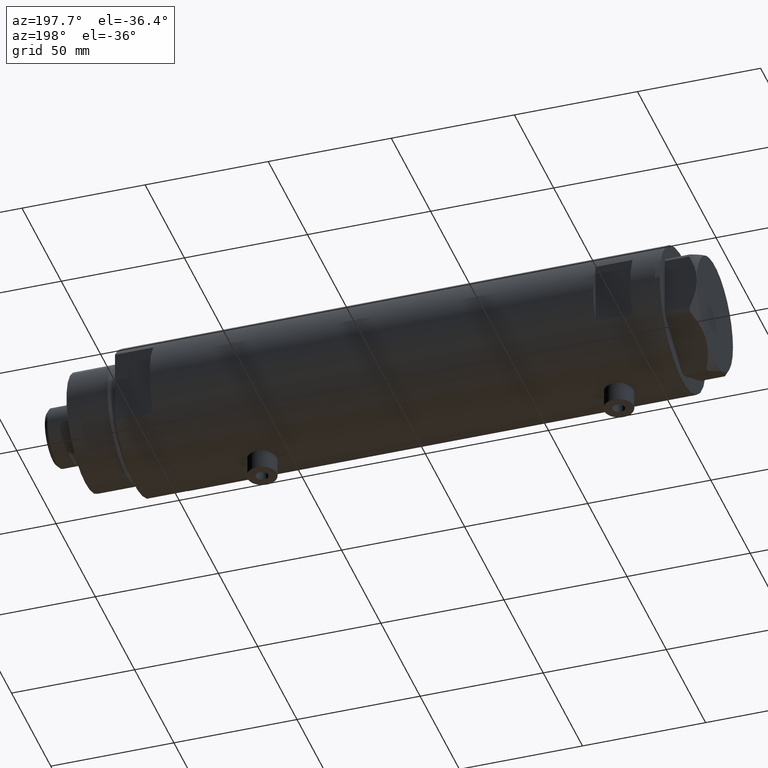
[diagram: clean part render]
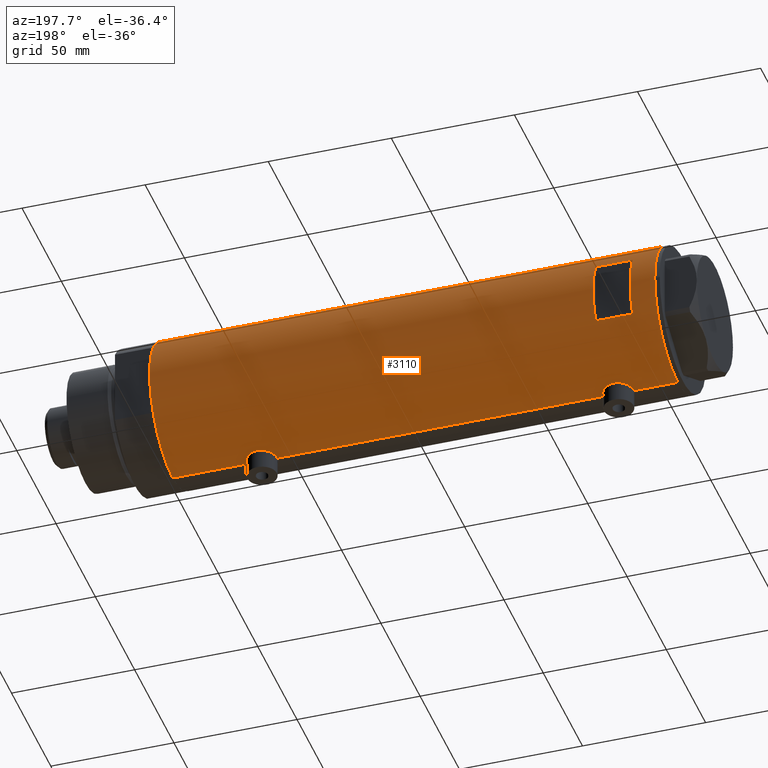
[diagram: same view with one face highlighted and labeled with its STEP entity id]
A machine part, auxiliary view. The second image highlights one B-rep face of the part: STEP entity #3110.
In plain terms, the highlighted cylindrical surface (partial cylindrical patch) has radius 29.5 mm, axis along (-1, -0, 0).
Its self-contained STEP definition (entity closure, byte-faithful):
#11 = CARTESIAN_POINT ( 'NONE',  ( 29.31463363472446204, 3.333180401682688920, -70.13656844683045222 ) ) ;
#32 = CARTESIAN_POINT ( 'NONE',  ( 28.63233008736633778, 7.102474189478622968, 79.67814868761111313 ) ) ;
#54 = CARTESIAN_POINT ( 'NONE',  ( 29.50000000000000355, 0.000000000000000000, 102.5999999999999943 ) ) ;
#61 = VECTOR ( 'NONE', #4126, 1000.000000000000000 ) ;
#69 = VECTOR ( 'NONE', #3626, 1000.000000000000000 ) ;
#97 = CARTESIAN_POINT ( 'NONE',  ( 29.50000000000000355, 0.2453482418156857914, 89.59999999999998010 ) ) ;
#103 = CARTESIAN_POINT ( 'NONE',  ( 29.08308069045667565, 4.954707331652133284, 87.75173628376772683 ) ) ;
#111 = CARTESIAN_POINT ( 'NONE',  ( -29.33379699751450431, 3.132328395749497396, -71.71232164486114868 ) ) ;
#166 = EDGE_CURVE ( 'NONE', #1174, #3950, #3920, .T. ) ;
#197 = CARTESIAN_POINT ( 'NONE',  ( -28.89816269917384872, 5.930588606439751054, 76.58529684457830911 ) ) ;
#228 = EDGE_CURVE ( 'NONE', #3821, #3749, #308, .T. ) ;
#233 = ORIENTED_EDGE ( 'NONE', *, *, #166, .T. ) ;
#279 = CARTESIAN_POINT ( 'NONE',  ( 28.59637095282949559, 7.245897747848937698, -65.35127374277608681 ) ) ;
#287 = CARTESIAN_POINT ( 'NONE',  ( -28.87327190949137545, 6.049038945481239438, -67.92451728205175243 ) ) ;
#296 = CARTESIAN_POINT ( 'NONE',  ( -29.12318177724206691, 4.709191267490246524, 74.47028949758346528 ) ) ;
#303 = CARTESIAN_POINT ( 'NONE',  ( 28.95590528945748687, 5.641861744747099117, -58.45235088071115115 ) ) ;
#308 = LINE ( 'NONE', #734, #4004 ) ;
#309 = ORIENTED_EDGE ( 'NONE', *, *, #1296, .T. ) ;
#333 = CARTESIAN_POINT ( 'NONE',  ( 28.77649569280672992, 6.494415104660921756, -59.64065011183374310 ) ) ;
#354 = CARTESIAN_POINT ( 'NONE',  ( 28.54350045195477037, 7.451747857568912892, -64.38266002875499794 ) ) ;
#360 = CARTESIAN_POINT ( 'NONE',  ( -29.12335997091253503, 4.707903814166473744, -62.16921992621198712 ) ) ;
#378 = CARTESIAN_POINT ( 'NONE',  ( 29.08204711695421807, 4.951923910293536402, -69.03816021594296615 ) ) ;
#396 = CARTESIAN_POINT ( 'NONE',  ( -29.43341305963176069, 2.016871341298213771, 72.67025331001197230 ) ) ;
#399 = CARTESIAN_POINT ( 'NONE',  ( 29.50000000000000355, -1.919926123348039602E-15, -70.89999999999999147 ) ) ;
#400 = CARTESIAN_POINT ( 'NONE',  ( 28.54350045195476326, 7.451747857568912004, 81.11733997124495943 ) ) ;
#409 = EDGE_CURVE ( 'NONE', #1310, #2507, #2648, .T. ) ;
#410 = CARTESIAN_POINT ( 'NONE',  ( -29.50000000000000711, 0.2042768310961464717, -72.55000000000001137 ) ) ;
#439 = DIRECTION ( 'NONE',  ( 1.000000000000000000, 0.000000000000000000, 0.000000000000000000 ) ) ;
#442 = CARTESIAN_POINT ( 'NONE',  ( 28.95615051861771860, 5.649234316505064690, 77.14284581253269835 ) ) ;
#449 = CARTESIAN_POINT ( 'NONE',  ( -28.94521404191311476, 5.694822755760267086, -68.88333046401342585 ) ) ;
#464 = DIRECTION ( 'NONE',  ( 0.000000000000000000, 0.000000000000000000, 1.000000000000000000 ) ) ;
#468 = CARTESIAN_POINT ( 'NONE',  ( 28.86328010881651807, 6.097564286278117862, 86.47368290922693745 ) ) ;
#477 = CARTESIAN_POINT ( 'NONE',  ( -29.43341305963176424, 2.016871341298205778, -72.22974668998810444 ) ) ;
#497 = CARTESIAN_POINT ( 'NONE',  ( -12.96148139681573319, 26.49999999999999645, -102.5999999999999943 ) ) ;
#498 = CARTESIAN_POINT ( 'NONE',  ( -28.99931529802530505, 5.412890550536864964, -69.43129199055215395 ) ) ;
#500 = CIRCLE ( 'NONE', #724, 29.50000000000000355 ) ;
#547 = VERTEX_POINT ( 'NONE', #2519 ) ;
#561 = CARTESIAN_POINT ( 'NONE',  ( -29.37156641804199353, 2.775801885207114239, 84.21472569706635625 ) ) ;
#583 = CARTESIAN_POINT ( 'NONE',  ( -29.50000000000000355, -5.649958391113855330E-16, 84.85000000000000853 ) ) ;
#586 = DIRECTION ( 'NONE',  ( 0.000000000000000000, 0.000000000000000000, 1.000000000000000000 ) ) ;
#608 = CARTESIAN_POINT ( 'NONE',  ( -29.46640581083894261, 1.421634556901802293, 84.68958891089420149 ) ) ;
#640 = CARTESIAN_POINT ( 'NONE',  ( 28.53073993742369652, 7.499791908386163719, -63.89461948433038430 ) ) ;
#660 = CARTESIAN_POINT ( 'NONE',  ( 28.58083212642745252, 7.306745240314161727, -65.10953669436206326 ) ) ;
#662 = VERTEX_POINT ( 'NONE', #679 ) ;
#663 = DIRECTION ( 'NONE',  ( -0.000000000000000000, -0.000000000000000000, -1.000000000000000000 ) ) ;
#675 = ORIENTED_EDGE ( 'NONE', *, *, #3569, .F. ) ;
#677 = LINE ( 'NONE', #1399, #1564 ) ;
#679 = CARTESIAN_POINT ( 'NONE',  ( -12.96148139681574030, 26.50000000000000355, 77.59999999999999432 ) ) ;
#684 = CARTESIAN_POINT ( 'NONE',  ( 29.17471722935868428, 4.373569479501284718, -69.49768842409017111 ) ) ;
#691 = CIRCLE ( 'NONE', #1071, 29.50000000000000355 ) ;
#694 = CARTESIAN_POINT ( 'NONE',  ( 0.000000000000000000, 0.000000000000000000, 92.59999999999999432 ) ) ;
#704 = CARTESIAN_POINT ( 'NONE',  ( -28.99931529802531571, 5.412890550536858747, 75.46870800944782331 ) ) ;
#716 = CARTESIAN_POINT ( 'NONE',  ( -29.45614208737133666, 1.620034288692377089, -60.26011356088387316 ) ) ;
#724 = AXIS2_PLACEMENT_3D ( 'NONE', #1752, #2124, #3604 ) ;
#728 = CARTESIAN_POINT ( 'NONE',  ( 28.69800960089390074, 6.832546664705498429, 85.20275030291305995 ) ) ;
#734 = CARTESIAN_POINT ( 'NONE',  ( 12.96148139681573319, 26.49999999999999645, -102.5999999999999943 ) ) ;
#736 = CARTESIAN_POINT ( 'NONE',  ( -28.99817753551064925, 5.423057650933444940, -63.16603848537408084 ) ) ;
#749 = CARTESIAN_POINT ( 'NONE',  ( 28.59637095282950980, 7.245897747848937698, 80.14872625722385635 ) ) ;
#752 = CARTESIAN_POINT ( 'NONE',  ( 29.48463566286631021, 0.9832945201638386701, -55.96062548237702572 ) ) ;
#760 = VERTEX_POINT ( 'NONE', #399 ) ;
#805 = CARTESIAN_POINT ( 'NONE',  ( -28.96258065965880135, 5.606121065329693565, -69.07051985068761724 ) ) ;
#814 = CARTESIAN_POINT ( 'NONE',  ( 29.26131531204080360, 3.767377415172557864, 88.60345302571127490 ) ) ;
#819 = CARTESIAN_POINT ( 'NONE',  ( 28.77473834757382321, 6.507156404236272174, 78.33837315939700829 ) ) ;
#885 = ORIENTED_EDGE ( 'NONE', *, *, #1954, .F. ) ;
#896 = ORIENTED_EDGE ( 'NONE', *, *, #1273, .F. ) ;
#940 = CARTESIAN_POINT ( 'NONE',  ( -29.49128627113591250, 0.8212788586050364659, 84.80923124908873945 ) ) ;
#963 = CARTESIAN_POINT ( 'NONE',  ( -29.45614208737133310, 1.620034288692375535, 84.63988643911609699 ) ) ;
#981 = DIRECTION ( 'NONE',  ( 0.000000000000000000, 0.000000000000000000, 1.000000000000000000 ) ) ;
#992 = AXIS2_PLACEMENT_3D ( 'NONE', #2822, #981, #1670 ) ;
#1015 = VERTEX_POINT ( 'NONE', #3593 ) ;
#1028 = CARTESIAN_POINT ( 'NONE',  ( -29.41782704931130965, 2.208494778271269166, -60.44961702072825460 ) ) ;
#1049 = CARTESIAN_POINT ( 'NONE',  ( -29.50000000000001066, 0.4142160563134688056, -60.05000000000000426 ) ) ;
#1058 = CARTESIAN_POINT ( 'NONE',  ( -28.96258065965880846, 5.606121065329690012, 75.82948014931236003 ) ) ;
#1063 = VECTOR ( 'NONE', #586, 1000.000000000000000 ) ;
#1064 = CARTESIAN_POINT ( 'NONE',  ( 29.31521205951408504, 3.327945423969218108, 88.83906509227087156 ) ) ;
#1065 = CARTESIAN_POINT ( 'NONE',  ( 29.43668864566816623, 1.946133027943910854, -70.64730912701001841 ) ) ;
#1071 = AXIS2_PLACEMENT_3D ( 'NONE', #694, #3302, #1096 ) ;
#1073 = CARTESIAN_POINT ( 'NONE',  ( -29.49128627113591250, 0.8212788586050389084, -60.09076875091125913 ) ) ;
#1096 = DIRECTION ( 'NONE',  ( 1.000000000000000000, -1.776356839400250267E-15, 0.000000000000000000 ) ) ;
#1104 = B_SPLINE_CURVE_WITH_KNOTS ( 'NONE', 3,
 ( #4460, #3344, #2591, #3023, #4774, #1133, #3387, #1493, #1159, #1111, #3754, #2643, #4143, #442, #1907, #819, #2298, #3780, #32, #749, #3707, #400, #1863, #1442, #2926, #4415, #4051, #728, #3682, #1833, #3317, #468, #1562, #1938, #3416, #103, #3045, #814, #1064, #2905, #4189, #4755, #2345, #3772, #97, #3802 ),
 .UNSPECIFIED., .F., .F.,
 ( 4, 2, 2, 2, 2, 2, 2, 2, 2, 2, 2, 2, 2, 2, 2, 2, 2, 2, 2, 2, 2, 2, 4 ),
 ( 2.180446897674398484E-18, 0.001471587963626214742, 0.002207381945439317126, 0.002943175927252419943, 0.004414763890878623843, 0.005150557872691738370, 0.005886351854504852897, 0.007357939818131048991, 0.008829527781757242483, 0.009565321763570359612, 0.01030111574538347674, 0.01177270370900966763, 0.01324429167263586199, 0.01471587963626205808, 0.01545167361807515093, 0.01618746759988825071, 0.01692326158170134529, 0.01765905556351443986, 0.01913064352714060473, 0.02060223149076676613, 0.02207381945439293100, 0.02280961343620601170, 0.02354540741801909587 ),
 .UNSPECIFIED. ) ;
#1111 = CARTESIAN_POINT ( 'NONE',  ( 29.17471722935868783, 4.373569479501283830, 76.00231157590984310 ) ) ;
#1118 = CARTESIAN_POINT ( 'NONE',  ( -29.50000000000000355, -1.590035304987910071E-15, -60.04999999999999005 ) ) ;
#1133 = CARTESIAN_POINT ( 'NONE',  ( 29.40165444879503909, 2.418426732012825653, 74.99632943565211463 ) ) ;
#1159 = CARTESIAN_POINT ( 'NONE',  ( 29.26187100173484623, 3.763222966830672256, 75.59401741939376507 ) ) ;
#1174 = VERTEX_POINT ( 'NONE', #3437 ) ;
#1190 = CARTESIAN_POINT ( 'NONE',  ( -29.21113960567727830, 4.128622307952528381, -71.01014533383553839 ) ) ;
#1273 = EDGE_CURVE ( 'NONE', #1310, #3284, #4167, .T. ) ;
#1281 = ORIENTED_EDGE ( 'NONE', *, *, #4161, .F. ) ;
#1289 = FACE_BOUND ( 'NONE', #2358, .T. ) ;
#1296 = EDGE_CURVE ( 'NONE', #3950, #547, #677, .T. ) ;
#1310 = VERTEX_POINT ( 'NONE', #3266 ) ;
#1320 = CARTESIAN_POINT ( 'NONE',  ( -12.96148139681573319, 26.49999999999998934, 92.59999999999999432 ) ) ;
#1325 = CARTESIAN_POINT ( 'NONE',  ( -29.12335997091253148, 4.707903814166463086, 82.73078007378803989 ) ) ;
#1372 = CARTESIAN_POINT ( 'NONE',  ( -28.91416466586725065, 5.850419487802252405, 80.80827647633628885 ) ) ;
#1399 = CARTESIAN_POINT ( 'NONE',  ( -29.50000000000000355, 3.612708057484692393E-15, -102.5999999999999943 ) ) ;
#1405 = CARTESIAN_POINT ( 'NONE',  ( 28.65280969280605206, 7.019670864411699185, -66.05213168683107483 ) ) ;
#1419 = DIRECTION ( 'NONE',  ( 0.000000000000000000, 0.000000000000000000, 1.000000000000000000 ) ) ;
#1426 = CARTESIAN_POINT ( 'NONE',  ( 29.38138226830142941, 2.652609128011945039, -70.41954601959669446 ) ) ;
#1442 = CARTESIAN_POINT ( 'NONE',  ( 28.53063088452981688, 7.500206755597528030, 82.58828856904804638 ) ) ;
#1445 = CARTESIAN_POINT ( 'NONE',  ( 29.50000000000000355, -1.919926123348039602E-15, -70.89999999999999147 ) ) ;
#1460 = EDGE_CURVE ( 'NONE', #1015, #3284, #4550, .T. ) ;
#1479 = CARTESIAN_POINT ( 'NONE',  ( -29.33500454540941149, 3.134363790739244759, -60.87737865536320214 ) ) ;
#1489 = CARTESIAN_POINT ( 'NONE',  ( -29.50000000000000355, 3.612706708236066082E-15, 72.34999999999999432 ) ) ;
#1493 = CARTESIAN_POINT ( 'NONE',  ( 29.31463363472445849, 3.333180401682688476, 75.36343155316953357 ) ) ;
#1494 = CARTESIAN_POINT ( 'NONE',  ( 29.47533087885489067, 1.230190383163956458, -55.99747868232939396 ) ) ;
#1499 = DIRECTION ( 'NONE',  ( 0.000000000000000000, 4.625929269271487689E-15, 1.000000000000000000 ) ) ;
#1502 = DIRECTION ( 'NONE',  ( 0.000000000000000000, 0.000000000000000000, 1.000000000000000000 ) ) ;
#1516 = CARTESIAN_POINT ( 'NONE',  ( 29.43913092143245791, 1.954882548385554752, -56.14250765266647392 ) ) ;
#1562 = CARTESIAN_POINT ( 'NONE',  ( 28.89369475765812112, 5.952264974793434860, 86.66950516186247455 ) ) ;
#1564 = VECTOR ( 'NONE', #1419, 1000.000000000000000 ) ;
#1591 = CARTESIAN_POINT ( 'NONE',  ( 0.000000000000000000, 0.000000000000000000, 77.60000000000007958 ) ) ;
#1603 = VECTOR ( 'NONE', #4641, 1000.000000000000000 ) ;
#1633 = CARTESIAN_POINT ( 'NONE',  ( -29.50000000000000711, 0.4142160563134686946, 84.85000000000002274 ) ) ;
#1654 = CARTESIAN_POINT ( 'NONE',  ( -28.94521404191312541, 5.694822755760260868, 76.01666953598657983 ) ) ;
#1670 = DIRECTION ( 'NONE',  ( 1.000000000000000000, 0.000000000000000000, 0.000000000000000000 ) ) ;
#1701 = FACE_OUTER_BOUND ( 'NONE', #4289, .T. ) ;
#1712 = EDGE_CURVE ( 'NONE', #2837, #2507, #500, .T. ) ;
#1730 = CARTESIAN_POINT ( 'NONE',  ( -29.07990598238133018, 4.966177878631055975, 82.41685031646510140 ) ) ;
#1735 = CARTESIAN_POINT ( 'NONE',  ( 12.96148139681573319, 26.49999999999998934, 92.59999999999999432 ) ) ;
#1737 = CARTESIAN_POINT ( 'NONE',  ( 29.50000000000000711, 0.4977435627019816122, -70.90000000000000568 ) ) ;
#1752 = CARTESIAN_POINT ( 'NONE',  ( 0.000000000000000000, 0.000000000000000000, 102.5999999999999943 ) ) ;
#1755 = CARTESIAN_POINT ( 'NONE',  ( -29.38727827406289705, 2.583363936682820494, 72.90521973871332762 ) ) ;
#1764 = CARTESIAN_POINT ( 'NONE',  ( 28.98787507734747848, 5.475789924529805397, -58.26910956623372329 ) ) ;
#1784 = CARTESIAN_POINT ( 'NONE',  ( -29.31451746246149170, 3.307268797680003036, 73.29285158014995716 ) ) ;
#1814 = CARTESIAN_POINT ( 'NONE',  ( 28.62953349941190950, 7.116010646391500494, -60.98020539076896540 ) ) ;
#1820 = CARTESIAN_POINT ( 'NONE',  ( 29.50000000000000355, -8.867907290838723877E-21, 89.59999999999998010 ) ) ;
#1821 = ORIENTED_EDGE ( 'NONE', *, *, #409, .T. ) ;
#1829 = CARTESIAN_POINT ( 'NONE',  ( -29.37021410611213668, 2.770135525807589261, 72.99365930977171502 ) ) ;
#1833 = CARTESIAN_POINT ( 'NONE',  ( 28.77649569280672992, 6.494415104660927973, 85.85934988816620717 ) ) ;
#1863 = CARTESIAN_POINT ( 'NONE',  ( 28.53073993742370362, 7.499791908386164607, 81.60538051566962281 ) ) ;
#1881 = VECTOR ( 'NONE', #2612, 1000.000000000000000 ) ;
#1890 = VERTEX_POINT ( 'NONE', #4054 ) ;
#1894 = CARTESIAN_POINT ( 'NONE',  ( -29.45783481716065566, 1.627188261681552728, -72.34836410908947357 ) ) ;
#1907 = CARTESIAN_POINT ( 'NONE',  ( 28.89325003604223951, 5.958922200807248437, 77.51915213504481983 ) ) ;
#1918 = ORIENTED_EDGE ( 'NONE', *, *, #2581, .F. ) ;
#1938 = CARTESIAN_POINT ( 'NONE',  ( 28.95590528945748687, 5.641861744747101781, 87.04764911928883464 ) ) ;
#1946 = CARTESIAN_POINT ( 'NONE',  ( -29.12318177724206691, 4.709191267490252741, -70.42971050241654041 ) ) ;
#1950 = LINE ( 'NONE', #3355, #2157 ) ;
#1954 = EDGE_CURVE ( 'NONE', #1174, #760, #1950, .T. ) ;
#1990 = ORIENTED_EDGE ( 'NONE', *, *, #228, .F. ) ;
#2008 = CARTESIAN_POINT ( 'NONE',  ( -28.83909818927743629, 6.209925900742494065, 79.41778075451993857 ) ) ;
#2066 = CARTESIAN_POINT ( 'NONE',  ( 29.50000000000000355, -8.867907290838723877E-21, -55.89999999999997016 ) ) ;
#2080 = CARTESIAN_POINT ( 'NONE',  ( -29.41782704931129544, 2.208494778271264725, 84.45038297927173687 ) ) ;
#2120 = CARTESIAN_POINT ( 'NONE',  ( -28.83028740688047975, 6.250162243045993549, -66.70646065908374567 ) ) ;
#2124 = DIRECTION ( 'NONE',  ( 0.000000000000000000, 0.000000000000000000, 1.000000000000000000 ) ) ;
#2132 = CARTESIAN_POINT ( 'NONE',  ( 28.72322018454529413, 6.726124749058835839, -60.07293147148995871 ) ) ;
#2157 = VECTOR ( 'NONE', #1502, 1000.000000000000000 ) ;
#2158 = CARTESIAN_POINT ( 'NONE',  ( 29.40387556522357571, 2.422597899785631004, -56.28513960230166191 ) ) ;
#2167 = CARTESIAN_POINT ( 'NONE',  ( -29.25454443288368722, 3.812919888526645096, -61.33102620819089168 ) ) ;
#2184 = CARTESIAN_POINT ( 'NONE',  ( 28.77473834757381965, 6.507156404236271285, -67.16162684060294907 ) ) ;
#2205 = CARTESIAN_POINT ( 'NONE',  ( 29.05056090758568743, 5.132790299589564675, -68.87391726652082014 ) ) ;
#2211 = CARTESIAN_POINT ( 'NONE',  ( -28.83035796536222861, 6.249836767212682886, -65.88856505377277983 ) ) ;
#2230 = CARTESIAN_POINT ( 'NONE',  ( 29.50000000000000711, 0.2453482418156860689, -55.89999999999997726 ) ) ;
#2285 = CARTESIAN_POINT ( 'NONE',  ( -29.07940225710134285, 4.969011347753395924, -70.11269734470182868 ) ) ;
#2298 = CARTESIAN_POINT ( 'NONE',  ( 28.72066933684368095, 6.738715173607861431, 78.77163044046442053 ) ) ;
#2308 = CARTESIAN_POINT ( 'NONE',  ( -29.48289442777306846, 1.024392307325224349, -72.46888222528698975 ) ) ;
#2345 = CARTESIAN_POINT ( 'NONE',  ( 29.48463566286631377, 0.9832945201638373378, 89.53937451762293165 ) ) ;
#2358 = EDGE_LOOP ( 'NONE', ( #1918, #1281, #1990, #4643 ) ) ;
#2471 = CARTESIAN_POINT ( 'NONE',  ( -29.33500454540941149, 3.134363790739238542, 84.02262134463680354 ) ) ;
#2479 = CARTESIAN_POINT ( 'NONE',  ( 28.89325003604224662, 5.958922200807249325, -67.98084786495518017 ) ) ;
#2494 = CARTESIAN_POINT ( 'NONE',  ( -29.48289442777306846, 1.024392307325220797, 72.43111777471301593 ) ) ;
#2502 = CARTESIAN_POINT ( 'NONE',  ( 29.14416130131008131, 4.572185141625607407, -69.35025411765555248 ) ) ;
#2507 = VERTEX_POINT ( 'NONE', #3326 ) ;
#2511 = CARTESIAN_POINT ( 'NONE',  ( -28.89816269917384872, 5.930588606439759047, -68.31470315542169658 ) ) ;
#2517 = CARTESIAN_POINT ( 'NONE',  ( -29.33379699751450076, 3.132328395749502725, 73.18767835513888542 ) ) ;
#2519 = CARTESIAN_POINT ( 'NONE',  ( -29.50000000000000355, 3.612706708267620518E-15, -72.54999999999999716 ) ) ;
#2548 = AXIS2_PLACEMENT_3D ( 'NONE', #1591, #1499, #3076 ) ;
#2551 = CARTESIAN_POINT ( 'NONE',  ( 29.48742029994219749, 0.9867701249543460174, -70.85094507494220295 ) ) ;
#2558 = CARTESIAN_POINT ( 'NONE',  ( -29.50000000000000355, 3.612708057484692393E-15, -102.5999999999999943 ) ) ;
#2566 = CARTESIAN_POINT ( 'NONE',  ( -29.45783481716065211, 1.627188261681546511, 72.55163589091057474 ) ) ;
#2578 = CARTESIAN_POINT ( 'NONE',  ( -29.07990598238133373, 4.966177878631061304, -62.48314968353489718 ) ) ;
#2581 = EDGE_CURVE ( 'NONE', #662, #3136, #4197, .T. ) ;
#2587 = CARTESIAN_POINT ( 'NONE',  ( -29.25435602127558354, 3.814249285079243101, 73.63216270466006108 ) ) ;
#2591 = CARTESIAN_POINT ( 'NONE',  ( 29.48742029994219749, 0.9867701249543477937, 74.64905492505776863 ) ) ;
#2596 = ORIENTED_EDGE ( 'NONE', *, *, #1712, .F. ) ;
#2599 = CARTESIAN_POINT ( 'NONE',  ( -29.21045586191520727, 4.133246019522343495, -61.59426098433517183 ) ) ;
#2612 = DIRECTION ( 'NONE',  ( 0.000000000000000000, 0.000000000000000000, 1.000000000000000000 ) ) ;
#2619 = CARTESIAN_POINT ( 'NONE',  ( 29.49693976195337086, 0.4910732786937780925, -55.91200905704373980 ) ) ;
#2626 = B_SPLINE_CURVE_WITH_KNOTS ( 'NONE', 3,
 ( #1445, #1737, #2551, #3983, #1065, #4003, #1426, #11, #4032, #684, #2502, #378, #2205, #4707, #2479, #2184, #3664, #1405, #3962, #279, #660, #354, #640, #2930, #3685, #3219, #1814, #3322, #2132, #333, #2835, #4319, #3612, #303, #1764, #3249, #4734, #2885, #4370, #2158, #1516, #1494, #752, #2619, #2230, #3710 ),
 .UNSPECIFIED., .F., .F.,
 ( 4, 2, 2, 2, 2, 2, 2, 2, 2, 2, 2, 2, 2, 2, 2, 2, 2, 2, 2, 2, 2, 2, 4 ),
 ( 1.864675043653717125E-18, 0.001471587963626201515, 0.002207381945439296743, 0.002943175927252393055, 0.004414763890878584812, 0.005150557872691693267, 0.005886351854504800855, 0.007357939818130984806, 0.008829527781757167890, 0.009565321763570278080, 0.01030111574538338827, 0.01177270370900956875, 0.01324429167263575097, 0.01471587963626193492, 0.01545167361807502603, 0.01618746759988811887, 0.01692326158170120998, 0.01765905556351430108, 0.01913064352714050065, 0.02060223149076670021, 0.02207381945439289977, 0.02280961343620599782, 0.02354540741801909587 ),
 .UNSPECIFIED. ) ;
#2628 = CARTESIAN_POINT ( 'NONE',  ( -29.49787850362430675, 0.4089683628077620536, -72.54001026437018140 ) ) ;
#2643 = CARTESIAN_POINT ( 'NONE',  ( 29.08204711695422162, 4.951923910293533737, 76.46183978405699122 ) ) ;
#2648 = LINE ( 'NONE', #3072, #61 ) ;
#2651 = CARTESIAN_POINT ( 'NONE',  ( -29.31451746246149881, 3.307268797680013250, -71.60714841985003432 ) ) ;
#2670 = CARTESIAN_POINT ( 'NONE',  ( -29.25435602127559065, 3.814249285079253315, -71.26783729533991618 ) ) ;
#2688 = ORIENTED_EDGE ( 'NONE', *, *, #4047, .F. ) ;
#2753 = CARTESIAN_POINT ( 'NONE',  ( -28.83925158138407596, 6.209208576703536764, 77.77801617131194689 ) ) ;
#2767 = CARTESIAN_POINT ( 'NONE',  ( 29.50000000000000355, 0.000000000000000000, -102.5999999999999943 ) ) ;
#2771 = ORIENTED_EDGE ( 'NONE', *, *, #3291, .F. ) ;
#2822 = CARTESIAN_POINT ( 'NONE',  ( 0.000000000000000000, 0.000000000000000000, -102.5999999999999943 ) ) ;
#2835 = CARTESIAN_POINT ( 'NONE',  ( 28.80468126786724881, 6.368639251981148774, -59.43139489317925950 ) ) ;
#2837 = VERTEX_POINT ( 'NONE', #54 ) ;
#2855 = CARTESIAN_POINT ( 'NONE',  ( -28.90008889585329399, 5.919338933253945889, 80.61640207058049157 ) ) ;
#2872 = CARTESIAN_POINT ( 'NONE',  ( -29.50000000000000355, 3.612706708236066082E-15, 72.34999999999999432 ) ) ;
#2873 = EDGE_CURVE ( 'NONE', #1890, #3966, #1104, .T. ) ;
#2885 = CARTESIAN_POINT ( 'NONE',  ( 29.26131531204079295, 3.767377415172556088, -56.89654697428867536 ) ) ;
#2905 = CARTESIAN_POINT ( 'NONE',  ( 29.40387556522357571, 2.422597899785628339, 89.21486039769835941 ) ) ;
#2919 = ORIENTED_EDGE ( 'NONE', *, *, #4477, .F. ) ;
#2926 = CARTESIAN_POINT ( 'NONE',  ( 28.54372006395177053, 7.450900983269902689, 83.08765735635914496 ) ) ;
#2930 = CARTESIAN_POINT ( 'NONE',  ( 28.53063088452981688, 7.500206755597528030, -62.91171143095191098 ) ) ;
#2938 = CARTESIAN_POINT ( 'NONE',  ( -28.86473101544357434, 6.089252369705498324, -64.87667050833967153 ) ) ;
#2961 = CARTESIAN_POINT ( 'NONE',  ( -29.37156641804198998, 2.775801885207120012, -60.68527430293369207 ) ) ;
#3023 = CARTESIAN_POINT ( 'NONE',  ( 29.45150476095192360, 1.707859807438206312, 74.79292881343936017 ) ) ;
#3045 = CARTESIAN_POINT ( 'NONE',  ( 29.14546206473281487, 4.578181670952607085, 88.06056091603291236 ) ) ;
#3061 = AXIS2_PLACEMENT_3D ( 'NONE', #3751, #464, #439 ) ;
#3072 = CARTESIAN_POINT ( 'NONE',  ( -29.50000000000000355, 3.612708057484692393E-15, -102.5999999999999943 ) ) ;
#3076 = DIRECTION ( 'NONE',  ( 0.000000000000000000, 1.000000000000000000, -4.704334850106595203E-15 ) ) ;
#3110 = ADVANCED_FACE ( 'NONE', ( #1289, #1701 ), #4208, .T. ) ;
#3136 = VERTEX_POINT ( 'NONE', #1320 ) ;
#3213 = CARTESIAN_POINT ( 'NONE',  ( -28.99817753551064570, 5.423057650933436058, 81.73396151462590353 ) ) ;
#3219 = CARTESIAN_POINT ( 'NONE',  ( 28.59328333056173577, 7.258376466535483296, -61.44875332515167798 ) ) ;
#3242 = CARTESIAN_POINT ( 'NONE',  ( -29.50000000000000355, 0.2042768310961497746, 72.34999999999999432 ) ) ;
#3249 = CARTESIAN_POINT ( 'NONE',  ( 29.08308069045667565, 4.954707331652131508, -57.74826371623223764 ) ) ;
#3259 = CARTESIAN_POINT ( 'NONE',  ( -28.90008889585329044, 5.919338933253952106, -64.28359792941949991 ) ) ;
#3266 = CARTESIAN_POINT ( 'NONE',  ( -29.50000000000000355, -5.649958391113855330E-16, 84.85000000000000853 ) ) ;
#3284 = VERTEX_POINT ( 'NONE', #2872 ) ;
#3291 = EDGE_CURVE ( 'NONE', #3581, #1890, #3993, .T. ) ;
#3302 = DIRECTION ( 'NONE',  ( -0.000000000000000000, -0.000000000000000000, -1.000000000000000000 ) ) ;
#3317 = CARTESIAN_POINT ( 'NONE',  ( 28.80468126786725236, 6.368639251981151439, 86.06860510682069787 ) ) ;
#3322 = CARTESIAN_POINT ( 'NONE',  ( 28.69800960089390074, 6.832546664705492212, -60.29724969708691162 ) ) ;
#3326 = CARTESIAN_POINT ( 'NONE',  ( -29.50000000000000355, 3.612708057484692393E-15, 102.5999999999999943 ) ) ;
#3344 = CARTESIAN_POINT ( 'NONE',  ( 29.50000000000000355, 0.4977435627019816122, 74.59999999999996589 ) ) ;
#3353 = ORIENTED_EDGE ( 'NONE', *, *, #2873, .F. ) ;
#3355 = CARTESIAN_POINT ( 'NONE',  ( 29.50000000000000355, 0.000000000000000000, -102.5999999999999943 ) ) ;
#3387 = CARTESIAN_POINT ( 'NONE',  ( 29.38138226830143651, 2.652609128011945927, 75.08045398040324869 ) ) ;
#3398 = CARTESIAN_POINT ( 'NONE',  ( -29.01875661852155019, 5.308007315944005988, -69.60588370000891700 ) ) ;
#3416 = CARTESIAN_POINT ( 'NONE',  ( 28.98787507734748914, 5.475789924529805397, 87.23089043376623408 ) ) ;
#3437 = CARTESIAN_POINT ( 'NONE',  ( 29.50000000000000355, 0.000000000000000000, -102.5999999999999943 ) ) ;
#3485 = CARTESIAN_POINT ( 'NONE',  ( -28.83035796536221440, 6.249836767212674005, 79.01143494622722585 ) ) ;
#3496 = LINE ( 'NONE', #2767, #1603 ) ;
#3508 = CARTESIAN_POINT ( 'NONE',  ( -29.25454443288369077, 3.812919888526638879, 83.56897379180912822 ) ) ;
#3569 = EDGE_CURVE ( 'NONE', #3966, #2837, #3496, .T. ) ;
#3581 = VERTEX_POINT ( 'NONE', #2066 ) ;
#3582 = CARTESIAN_POINT ( 'NONE',  ( -29.21045586191521082, 4.133246019522336390, 83.30573901566482675 ) ) ;
#3593 = CARTESIAN_POINT ( 'NONE',  ( -29.50000000000000355, -1.590035304987910071E-15, -60.04999999999999005 ) ) ;
#3599 = CARTESIAN_POINT ( 'NONE',  ( -28.83925158138408307, 6.209208576703545646, -67.12198382868808721 ) ) ;
#3604 = DIRECTION ( 'NONE',  ( 1.000000000000000000, 0.000000000000000000, 0.000000000000000000 ) ) ;
#3612 = CARTESIAN_POINT ( 'NONE',  ( 28.89369475765811046, 5.952264974793432195, -58.83049483813749703 ) ) ;
#3623 = CARTESIAN_POINT ( 'NONE',  ( -28.96085629491410174, 5.616414220648542788, -63.52800360409993630 ) ) ;
#3626 = DIRECTION ( 'NONE',  ( 0.000000000000000000, 0.000000000000000000, 1.000000000000000000 ) ) ;
#3634 = CARTESIAN_POINT ( 'NONE',  ( -29.21113960567727119, 4.128622307952519499, 73.88985466616449571 ) ) ;
#3648 = CARTESIAN_POINT ( 'NONE',  ( -28.87539346372185278, 6.038655803256923527, -64.67547335916927409 ) ) ;
#3664 = CARTESIAN_POINT ( 'NONE',  ( 28.72066933684368095, 6.738715173607859654, -66.72836955953552263 ) ) ;
#3682 = CARTESIAN_POINT ( 'NONE',  ( 28.72322018454530479, 6.726124749058844721, 85.42706852850996313 ) ) ;
#3685 = CARTESIAN_POINT ( 'NONE',  ( 28.54372006395176697, 7.450900983269902689, -62.41234264364082662 ) ) ;
#3702 = CARTESIAN_POINT ( 'NONE',  ( -29.01875661852155019, 5.308007315944001547, 75.29411629999108868 ) ) ;
#3707 = CARTESIAN_POINT ( 'NONE',  ( 28.58083212642745607, 7.306745240314161727, 80.39046330563790832 ) ) ;
#3710 = CARTESIAN_POINT ( 'NONE',  ( 29.50000000000000355, -8.867907290838723877E-21, -55.89999999999997016 ) ) ;
#3725 = B_SPLINE_CURVE_WITH_KNOTS ( 'NONE', 3,
 ( #1118, #1049, #1073, #4040, #716, #4356, #1028, #2961, #1479, #2167, #2599, #360, #2578, #736, #3623, #4079, #3259, #3648, #2938, #4059, #2211, #2120, #3599, #287, #2511, #449, #805, #498, #3398, #2285, #1946, #1190, #2670, #2651, #111, #4177, #4468, #477, #1894, #2308, #3761, #2628, #410, #3814 ),
 .UNSPECIFIED., .F., .F.,
 ( 4, 2, 2, 2, 2, 2, 2, 2, 2, 2, 2, 2, 2, 2, 2, 2, 2, 2, 2, 2, 2, 4 ),
 ( 1.544559621223092988E-18, 0.001224749128302355305, 0.001837123692453529597, 0.002449498256604704972, 0.003674247384907053989, 0.004898996513209403873, 0.006123745641511752456, 0.007348494769814101907, 0.007960869333965277933, 0.008573243898116452225, 0.009797993026418759174, 0.01102274215472106959, 0.01224749128302338001, 0.01285986584717451614, 0.01347224041132565053, 0.01469698953962795575, 0.01592173866793026096, 0.01653411323208141270, 0.01714648779623256791, 0.01837123692453485752, 0.01898361148868599538, 0.01959598605283713324 ),
 .UNSPECIFIED. ) ;
#3749 = VERTEX_POINT ( 'NONE', #4327 ) ;
#3751 = CARTESIAN_POINT ( 'NONE',  ( 0.000000000000000000, 0.000000000000000000, -102.5999999999999943 ) ) ;
#3754 = CARTESIAN_POINT ( 'NONE',  ( 29.14416130131008131, 4.572185141625607407, 76.14974588234440489 ) ) ;
#3761 = CARTESIAN_POINT ( 'NONE',  ( -29.48933702067640539, 0.8192029158410132350, -72.49950722266699188 ) ) ;
#3772 = CARTESIAN_POINT ( 'NONE',  ( 29.49693976195335665, 0.4910732786937767047, 89.58799094295622467 ) ) ;
#3780 = CARTESIAN_POINT ( 'NONE',  ( 28.65280969280607337, 7.019670864411701849, 79.44786831316891096 ) ) ;
#3802 = CARTESIAN_POINT ( 'NONE',  ( 29.50000000000000355, -8.867907290838723877E-21, 89.59999999999998010 ) ) ;
#3814 = CARTESIAN_POINT ( 'NONE',  ( -29.50000000000000355, 3.612706708267620518E-15, -72.54999999999999716 ) ) ;
#3821 = VERTEX_POINT ( 'NONE', #1735 ) ;
#3826 = CARTESIAN_POINT ( 'NONE',  ( -29.50000000000000355, 3.612708057484692393E-15, -102.5999999999999943 ) ) ;
#3850 = CARTESIAN_POINT ( 'NONE',  ( -28.86473101544358144, 6.089252369705490331, 80.02332949166033416 ) ) ;
#3877 = CARTESIAN_POINT ( 'NONE',  ( -29.43187585711094556, 2.013330896687708815, 84.52040860029107705 ) ) ;
#3920 = CIRCLE ( 'NONE', #3061, 29.50000000000000355 ) ;
#3950 = VERTEX_POINT ( 'NONE', #2558 ) ;
#3953 = EDGE_CURVE ( 'NONE', #3136, #3821, #691, .T. ) ;
#3962 = CARTESIAN_POINT ( 'NONE',  ( 28.63233008736633423, 7.102474189478621192, -65.82185131238887266 ) ) ;
#3966 = VERTEX_POINT ( 'NONE', #1820 ) ;
#3983 = CARTESIAN_POINT ( 'NONE',  ( 29.45150476095191650, 1.707859807438203426, -70.70707118656061141 ) ) ;
#3993 = LINE ( 'NONE', #4403, #69 ) ;
#3997 = CARTESIAN_POINT ( 'NONE',  ( -29.07940225710134285, 4.969011347753391483, 74.78730265529816279 ) ) ;
#4003 = CARTESIAN_POINT ( 'NONE',  ( 29.40165444879503909, 2.418426732012824765, -70.50367056434787116 ) ) ;
#4004 = VECTOR ( 'NONE', #663, 1000.000000000000000 ) ;
#4032 = CARTESIAN_POINT ( 'NONE',  ( 29.26187100173484978, 3.763222966830672256, -69.90598258060620651 ) ) ;
#4040 = CARTESIAN_POINT ( 'NONE',  ( -29.46640581083894617, 1.421634556901805624, -60.21041108910579709 ) ) ;
#4047 = EDGE_CURVE ( 'NONE', #1015, #547, #3725, .T. ) ;
#4051 = CARTESIAN_POINT ( 'NONE',  ( 28.62953349941190595, 7.116010646391501382, 84.51979460923098486 ) ) ;
#4054 = CARTESIAN_POINT ( 'NONE',  ( 29.50000000000000355, -2.245054425791785664E-15, 74.59999999999996589 ) ) ;
#4059 = CARTESIAN_POINT ( 'NONE',  ( -28.83909818927743629, 6.209925900742501170, -65.48221924548006712 ) ) ;
#4067 = CARTESIAN_POINT ( 'NONE',  ( -29.48933702067640894, 0.8192029158410168987, 72.40049277733302802 ) ) ;
#4079 = CARTESIAN_POINT ( 'NONE',  ( -28.91416466586723999, 5.850419487802257734, -64.09172352366374525 ) ) ;
#4126 = DIRECTION ( 'NONE',  ( 0.000000000000000000, 0.000000000000000000, 1.000000000000000000 ) ) ;
#4143 = CARTESIAN_POINT ( 'NONE',  ( 29.05056090758568388, 5.132790299589563787, 76.62608273347910881 ) ) ;
#4161 = EDGE_CURVE ( 'NONE', #3749, #662, #4253, .T. ) ;
#4167 = B_SPLINE_CURVE_WITH_KNOTS ( 'NONE', 3,
 ( #583, #1633, #940, #608, #963, #3877, #2080, #561, #2471, #3508, #3582, #1325, #1730, #3213, #4699, #1372, #2855, #4340, #3850, #2008, #3485, #4599, #2753, #4237, #197, #1654, #1058, #704, #3702, #3997, #296, #3634, #2587, #1784, #2517, #1829, #1755, #396, #2566, #2494, #4067, #4728, #3242, #1489 ),
 .UNSPECIFIED., .F., .F.,
 ( 4, 2, 2, 2, 2, 2, 2, 2, 2, 2, 2, 2, 2, 2, 2, 2, 2, 2, 2, 2, 2, 4 ),
 ( 5.488367186017542912E-19, 0.001224749128302359208, 0.001837123692453538487, 0.002449498256604717549, 0.003674247384907060928, 0.004898996513209404741, 0.006123745641511747252, 0.007348494769814091498, 0.007960869333965264055, 0.008573243898116434877, 0.009797993026418740092, 0.01102274215472104531, 0.01224749128302334705, 0.01285986584717448145, 0.01347224041132561584, 0.01469698953962791585, 0.01592173866793021586, 0.01653411323208136413, 0.01714648779623251240, 0.01837123692453481241, 0.01898361148868596762, 0.01959598605283711936 ),
 .UNSPECIFIED. ) ;
#4177 = CARTESIAN_POINT ( 'NONE',  ( -29.37021410611214023, 2.770135525807584820, -71.90634069022830488 ) ) ;
#4189 = CARTESIAN_POINT ( 'NONE',  ( 29.43913092143246146, 1.954882548385547203, 89.35749234733350477 ) ) ;
#4197 = LINE ( 'NONE', #497, #1063 ) ;
#4208 = CYLINDRICAL_SURFACE ( 'NONE', #992, 29.50000000000000355 ) ;
#4237 = CARTESIAN_POINT ( 'NONE',  ( -28.87327190949138256, 6.049038945481234109, 76.97548271794828167 ) ) ;
#4253 = CIRCLE ( 'NONE', #2548, 29.50000000000000355 ) ;
#4272 = ORIENTED_EDGE ( 'NONE', *, *, #1460, .T. ) ;
#4289 = EDGE_LOOP ( 'NONE', ( #233, #309, #2688, #4272, #896, #1821, #2596, #675, #3353, #2771, #2919, #885 ) ) ;
#4319 = CARTESIAN_POINT ( 'NONE',  ( 28.86328010881652162, 6.097564286278117862, -59.02631709077300570 ) ) ;
#4327 = CARTESIAN_POINT ( 'NONE',  ( 12.96148139681571898, 26.50000000000000355, 77.59999999999999432 ) ) ;
#4340 = CARTESIAN_POINT ( 'NONE',  ( -28.87539346372184923, 6.038655803256915533, 80.22452664083073159 ) ) ;
#4356 = CARTESIAN_POINT ( 'NONE',  ( -29.43187585711095622, 2.013330896687711036, -60.37959139970892153 ) ) ;
#4370 = CARTESIAN_POINT ( 'NONE',  ( 29.31521205951407794, 3.327945423969224326, -56.66093490772907160 ) ) ;
#4403 = CARTESIAN_POINT ( 'NONE',  ( 29.50000000000000355, 0.000000000000000000, -102.5999999999999943 ) ) ;
#4415 = CARTESIAN_POINT ( 'NONE',  ( 28.59328333056173221, 7.258376466535483296, 84.05124667484830070 ) ) ;
#4460 = CARTESIAN_POINT ( 'NONE',  ( 29.50000000000000355, -2.245054425791785664E-15, 74.59999999999996589 ) ) ;
#4468 = CARTESIAN_POINT ( 'NONE',  ( -29.38727827406290416, 2.583363936682816941, -71.99478026128666386 ) ) ;
#4477 = EDGE_CURVE ( 'NONE', #760, #3581, #2626, .T. ) ;
#4550 = LINE ( 'NONE', #3826, #1881 ) ;
#4599 = CARTESIAN_POINT ( 'NONE',  ( -28.83028740688046554, 6.250162243045982891, 78.19353934091624581 ) ) ;
#4641 = DIRECTION ( 'NONE',  ( 0.000000000000000000, 0.000000000000000000, 1.000000000000000000 ) ) ;
#4643 = ORIENTED_EDGE ( 'NONE', *, *, #3953, .F. ) ;
#4699 = CARTESIAN_POINT ( 'NONE',  ( -28.96085629491408753, 5.616414220648533018, 81.37199639590008360 ) ) ;
#4707 = CARTESIAN_POINT ( 'NONE',  ( 28.95615051861772571, 5.649234316505062914, -68.35715418746728744 ) ) ;
#4728 = CARTESIAN_POINT ( 'NONE',  ( -29.49787850362429964, 0.4089683628077637745, 72.35998973562988112 ) ) ;
#4734 = CARTESIAN_POINT ( 'NONE',  ( 29.14546206473280066, 4.578181670952603532, -57.43943908396705211 ) ) ;
#4755 = CARTESIAN_POINT ( 'NONE',  ( 29.47533087885488712, 1.230190383163952461, 89.50252131767058472 ) ) ;
#4774 = CARTESIAN_POINT ( 'NONE',  ( 29.43668864566816268, 1.946133027943911076, 74.85269087298996737 ) ) ;